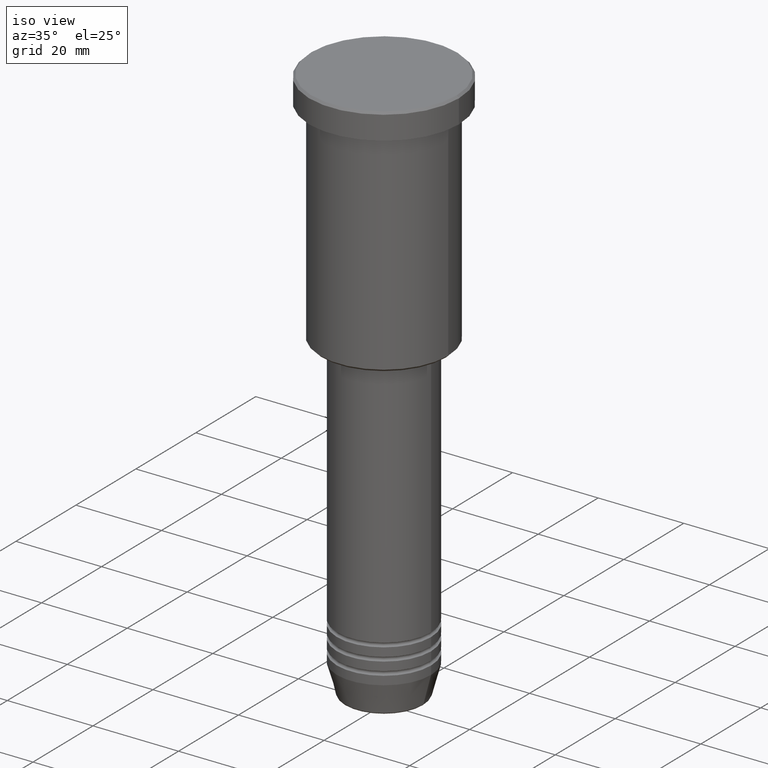
[diagram: clean part render]
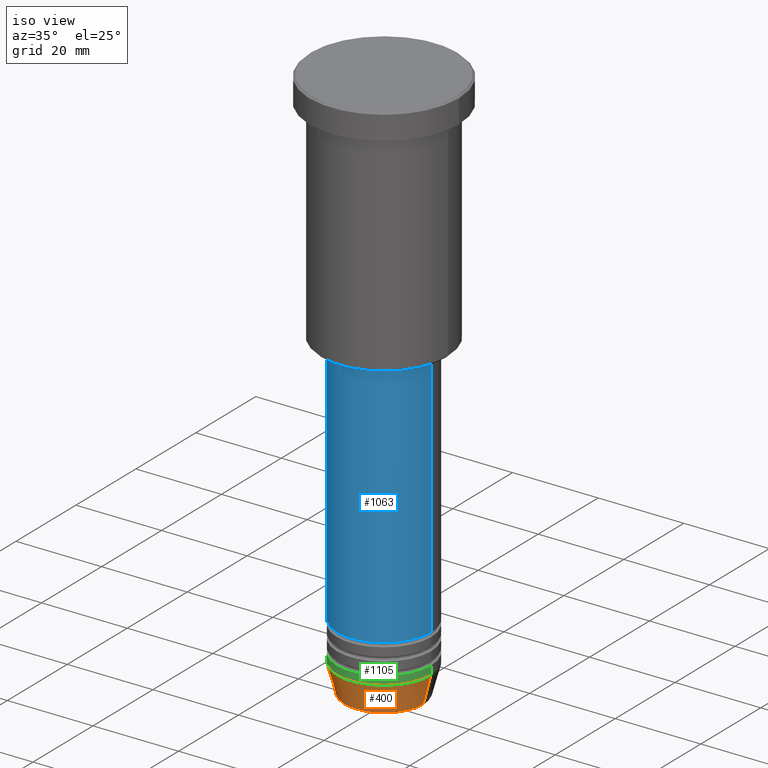
[diagram: same view with three faces highlighted in distinct colors, each labeled with its STEP entity id]
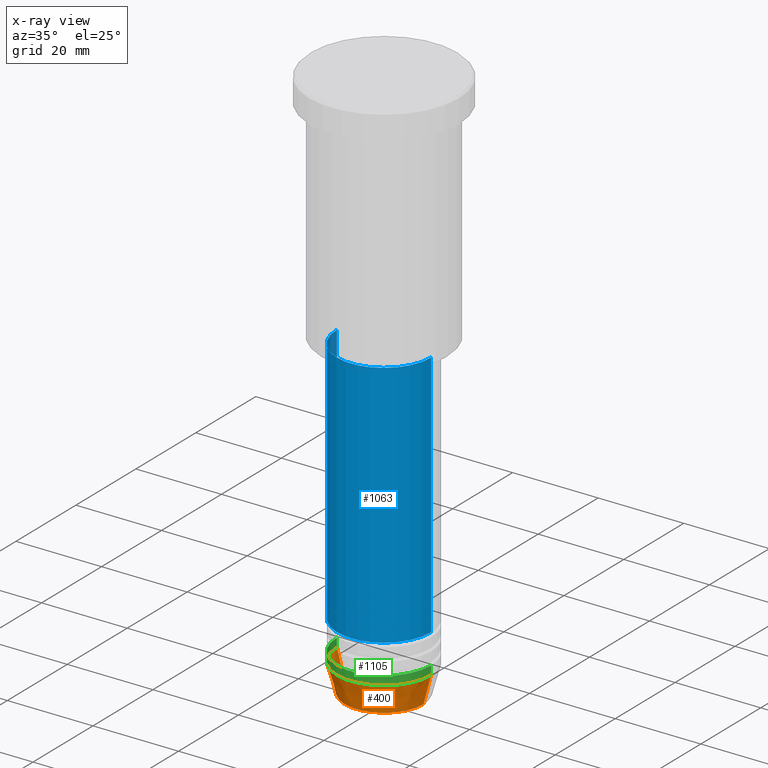
[diagram: x-ray of the same camera — body ghosted, the three highlighted faces saturated]
A machine part, iso view with three faces highlighted in distinct colors.
The next image is the same camera in x-ray (body ghosted, the three faces saturated) — at least one of them is partly hidden behind the body in this view.
Their STEP definitions:

[orange] entity #400 — the highlighted conical surface has half-angle 15 deg.
#24 = DIRECTION ( 'NONE',  ( -0.000000000000000000, -0.000000000000000000, 1.000000000000000000 ) ) ;
#54 = EDGE_LOOP ( 'NONE', ( #957, #493, #634, #1018 ) ) ;
#118 = VECTOR ( 'NONE', #348, 1000.000000000000000 ) ;
#137 = EDGE_CURVE ( 'NONE', #367, #667, #909, .T. ) ;
#174 = LINE ( 'NONE', #1151, #118 ) ;
#348 = DIRECTION ( 'NONE',  ( 0.2588190451025213501, 0.000000000000000000, 0.9659258262890680902 ) ) ;
#367 = VERTEX_POINT ( 'NONE', #1016 ) ;
#382 = CARTESIAN_POINT ( 'NONE',  ( 0.000000000000000000, 0.000000000000000000, -124.0000000000000000 ) ) ;
#398 = DIRECTION ( 'NONE',  ( 1.000000000000000000, 0.000000000000000000, 0.000000000000000000 ) ) ;
#400 = ADVANCED_FACE ( 'NONE', ( #513 ), #545, .T. ) ;
#429 = DIRECTION ( 'NONE',  ( -0.000000000000000000, -0.000000000000000000, 1.000000000000000000 ) ) ;
#449 = AXIS2_PLACEMENT_3D ( 'NONE', #864, #429, #604 ) ;
#484 = VERTEX_POINT ( 'NONE', #975 ) ;
#493 = ORIENTED_EDGE ( 'NONE', *, *, #737, .T. ) ;
#509 = EDGE_CURVE ( 'NONE', #586, #484, #174, .T. ) ;
#513 = FACE_OUTER_BOUND ( 'NONE', #54, .T. ) ;
#545 = CONICAL_SURFACE ( 'NONE', #449, 11.00000000000000000, 0.2617993877991500740 ) ;
#554 = DIRECTION ( 'NONE',  ( -0.2588190451025213501, 3.169619151431772337E-17, 0.9659258262890680902 ) ) ;
#586 = VERTEX_POINT ( 'NONE', #1092 ) ;
#587 = CARTESIAN_POINT ( 'NONE',  ( 0.000000000000000000, 0.000000000000000000, -130.6294095225512422 ) ) ;
#604 = DIRECTION ( 'NONE',  ( 1.000000000000000000, 0.000000000000000000, 0.000000000000000000 ) ) ;
#634 = ORIENTED_EDGE ( 'NONE', *, *, #509, .T. ) ;
#665 = AXIS2_PLACEMENT_3D ( 'NONE', #587, #970, #956 ) ;
#667 = VERTEX_POINT ( 'NONE', #1183 ) ;
#686 = VECTOR ( 'NONE', #554, 1000.000000000000000 ) ;
#737 = EDGE_CURVE ( 'NONE', #367, #586, #919, .T. ) ;
#864 = CARTESIAN_POINT ( 'NONE',  ( 0.000000000000000000, 0.000000000000000000, -124.0000000000000000 ) ) ;
#909 = LINE ( 'NONE', #1101, #686 ) ;
#919 = CIRCLE ( 'NONE', #665, 9.223655072137187716 ) ;
#956 = DIRECTION ( 'NONE',  ( 1.000000000000000000, 0.000000000000000000, 0.000000000000000000 ) ) ;
#957 = ORIENTED_EDGE ( 'NONE', *, *, #137, .F. ) ;
#970 = DIRECTION ( 'NONE',  ( -0.000000000000000000, -0.000000000000000000, 1.000000000000000000 ) ) ;
#975 = CARTESIAN_POINT ( 'NONE',  ( 11.00000000000000000, 0.000000000000000000, -124.0000000000000000 ) ) ;
#984 = CIRCLE ( 'NONE', #1097, 11.00000000000000000 ) ;
#1016 = CARTESIAN_POINT ( 'NONE',  ( -9.223655072137187716, 1.238341722557647004E-15, -130.6294095225512422 ) ) ;
#1018 = ORIENTED_EDGE ( 'NONE', *, *, #1049, .F. ) ;
#1049 = EDGE_CURVE ( 'NONE', #667, #484, #984, .T. ) ;
#1092 = CARTESIAN_POINT ( 'NONE',  ( 9.223655072137187716, 0.000000000000000000, -130.6294095225512422 ) ) ;
#1097 = AXIS2_PLACEMENT_3D ( 'NONE', #382, #24, #398 ) ;
#1101 = CARTESIAN_POINT ( 'NONE',  ( -11.00000000000000000, 1.347111479062088405E-15, -124.0000000000000000 ) ) ;
#1151 = CARTESIAN_POINT ( 'NONE',  ( 11.00000000000000000, 0.000000000000000000, -124.0000000000000000 ) ) ;
#1183 = CARTESIAN_POINT ( 'NONE',  ( -11.00000000000000000, 1.347111479062088405E-15, -124.0000000000000000 ) ) ;

[blue] entity #1063 — the highlighted cylindrical surface (partial cylindrical patch) has radius 11 mm, axis along (-0, -0, 1).
#71 = LINE ( 'NONE', #342, #854 ) ;
#95 = EDGE_CURVE ( 'NONE', #1126, #694, #804, .T. ) ;
#187 = ORIENTED_EDGE ( 'NONE', *, *, #95, .T. ) ;
#195 = CIRCLE ( 'NONE', #1160, 11.00000000000000000 ) ;
#222 = VERTEX_POINT ( 'NONE', #463 ) ;
#267 = DIRECTION ( 'NONE',  ( -0.000000000000000000, -0.000000000000000000, 1.000000000000000000 ) ) ;
#296 = VECTOR ( 'NONE', #671, 1000.000000000000000 ) ;
#334 = AXIS2_PLACEMENT_3D ( 'NONE', #619, #969, #819 ) ;
#342 = CARTESIAN_POINT ( 'NONE',  ( 11.00000000000000000, 0.000000000000000000, 0.000000000000000000 ) ) ;
#387 = CARTESIAN_POINT ( 'NONE',  ( -11.00000000000000000, 1.347111479062088405E-15, -114.9999999999999574 ) ) ;
#395 = CARTESIAN_POINT ( 'NONE',  ( 11.00000000000000000, 0.000000000000000000, -114.9999999999999574 ) ) ;
#439 = DIRECTION ( 'NONE',  ( -0.000000000000000000, -0.000000000000000000, 1.000000000000000000 ) ) ;
#463 = CARTESIAN_POINT ( 'NONE',  ( 11.00000000000000000, 0.000000000000000000, -57.00000000000000000 ) ) ;
#472 = EDGE_CURVE ( 'NONE', #1081, #222, #195, .T. ) ;
#475 = FACE_OUTER_BOUND ( 'NONE', #514, .T. ) ;
#506 = ORIENTED_EDGE ( 'NONE', *, *, #472, .F. ) ;
#511 = ORIENTED_EDGE ( 'NONE', *, *, #1074, .F. ) ;
#514 = EDGE_LOOP ( 'NONE', ( #511, #187, #1116, #506 ) ) ;
#619 = CARTESIAN_POINT ( 'NONE',  ( 0.000000000000000000, 0.000000000000000000, -114.9999999999999574 ) ) ;
#661 = CYLINDRICAL_SURFACE ( 'NONE', #1175, 11.00000000000000000 ) ;
#671 = DIRECTION ( 'NONE',  ( -0.000000000000000000, -0.000000000000000000, 1.000000000000000000 ) ) ;
#694 = VERTEX_POINT ( 'NONE', #395 ) ;
#712 = CARTESIAN_POINT ( 'NONE',  ( 0.000000000000000000, 0.000000000000000000, -57.00000000000000000 ) ) ;
#762 = LINE ( 'NONE', #828, #296 ) ;
#801 = DIRECTION ( 'NONE',  ( 1.000000000000000000, 0.000000000000000000, 0.000000000000000000 ) ) ;
#804 = CIRCLE ( 'NONE', #334, 11.00000000000000000 ) ;
#819 = DIRECTION ( 'NONE',  ( 1.000000000000000000, 0.000000000000000000, 0.000000000000000000 ) ) ;
#828 = CARTESIAN_POINT ( 'NONE',  ( -11.00000000000000000, 1.347111479062088405E-15, 0.000000000000000000 ) ) ;
#854 = VECTOR ( 'NONE', #439, 1000.000000000000000 ) ;
#859 = EDGE_CURVE ( 'NONE', #694, #222, #71, .T. ) ;
#907 = DIRECTION ( 'NONE',  ( -0.000000000000000000, -0.000000000000000000, 1.000000000000000000 ) ) ;
#920 = CARTESIAN_POINT ( 'NONE',  ( 0.000000000000000000, 0.000000000000000000, 0.000000000000000000 ) ) ;
#927 = DIRECTION ( 'NONE',  ( 1.000000000000000000, 0.000000000000000000, 0.000000000000000000 ) ) ;
#969 = DIRECTION ( 'NONE',  ( -0.000000000000000000, -0.000000000000000000, 1.000000000000000000 ) ) ;
#1063 = ADVANCED_FACE ( 'NONE', ( #475 ), #661, .T. ) ;
#1074 = EDGE_CURVE ( 'NONE', #1126, #1081, #762, .T. ) ;
#1081 = VERTEX_POINT ( 'NONE', #1110 ) ;
#1110 = CARTESIAN_POINT ( 'NONE',  ( -11.00000000000000000, 1.347111479062088405E-15, -57.00000000000000000 ) ) ;
#1116 = ORIENTED_EDGE ( 'NONE', *, *, #859, .T. ) ;
#1126 = VERTEX_POINT ( 'NONE', #387 ) ;
#1160 = AXIS2_PLACEMENT_3D ( 'NONE', #712, #267, #801 ) ;
#1175 = AXIS2_PLACEMENT_3D ( 'NONE', #920, #907, #927 ) ;

[green] entity #1105 — the highlighted cylindrical surface (partial cylindrical patch) has radius 11 mm, axis along (-0, -0, 1).
#3 = FACE_OUTER_BOUND ( 'NONE', #237, .T. ) ;
#24 = DIRECTION ( 'NONE',  ( -0.000000000000000000, -0.000000000000000000, 1.000000000000000000 ) ) ;
#42 = ORIENTED_EDGE ( 'NONE', *, *, #1049, .T. ) ;
#59 = VECTOR ( 'NONE', #917, 1000.000000000000000 ) ;
#73 = CARTESIAN_POINT ( 'NONE',  ( 11.00000000000000000, 0.000000000000000000, -122.0000000000000000 ) ) ;
#83 = AXIS2_PLACEMENT_3D ( 'NONE', #512, #794, #862 ) ;
#84 = AXIS2_PLACEMENT_3D ( 'NONE', #1001, #1090, #192 ) ;
#96 = LINE ( 'NONE', #544, #59 ) ;
#192 = DIRECTION ( 'NONE',  ( 1.000000000000000000, 0.000000000000000000, 0.000000000000000000 ) ) ;
#220 = EDGE_CURVE ( 'NONE', #667, #231, #96, .T. ) ;
#229 = CARTESIAN_POINT ( 'NONE',  ( 11.00000000000000000, 0.000000000000000000, 0.000000000000000000 ) ) ;
#231 = VERTEX_POINT ( 'NONE', #829 ) ;
#237 = EDGE_LOOP ( 'NONE', ( #1109, #42, #916, #769 ) ) ;
#297 = EDGE_CURVE ( 'NONE', #484, #490, #848, .T. ) ;
#382 = CARTESIAN_POINT ( 'NONE',  ( 0.000000000000000000, 0.000000000000000000, -124.0000000000000000 ) ) ;
#398 = DIRECTION ( 'NONE',  ( 1.000000000000000000, 0.000000000000000000, 0.000000000000000000 ) ) ;
#407 = DIRECTION ( 'NONE',  ( -0.000000000000000000, -0.000000000000000000, 1.000000000000000000 ) ) ;
#484 = VERTEX_POINT ( 'NONE', #975 ) ;
#490 = VERTEX_POINT ( 'NONE', #73 ) ;
#512 = CARTESIAN_POINT ( 'NONE',  ( 0.000000000000000000, 0.000000000000000000, -122.0000000000000000 ) ) ;
#544 = CARTESIAN_POINT ( 'NONE',  ( -11.00000000000000000, 1.347111479062088405E-15, 0.000000000000000000 ) ) ;
#667 = VERTEX_POINT ( 'NONE', #1183 ) ;
#769 = ORIENTED_EDGE ( 'NONE', *, *, #826, .F. ) ;
#794 = DIRECTION ( 'NONE',  ( -0.000000000000000000, -0.000000000000000000, 1.000000000000000000 ) ) ;
#826 = EDGE_CURVE ( 'NONE', #231, #490, #995, .T. ) ;
#829 = CARTESIAN_POINT ( 'NONE',  ( -11.00000000000000000, 1.347111479062088405E-15, -122.0000000000000000 ) ) ;
#848 = LINE ( 'NONE', #229, #941 ) ;
#862 = DIRECTION ( 'NONE',  ( 1.000000000000000000, 0.000000000000000000, 0.000000000000000000 ) ) ;
#916 = ORIENTED_EDGE ( 'NONE', *, *, #297, .T. ) ;
#917 = DIRECTION ( 'NONE',  ( -0.000000000000000000, -0.000000000000000000, 1.000000000000000000 ) ) ;
#941 = VECTOR ( 'NONE', #407, 1000.000000000000000 ) ;
#975 = CARTESIAN_POINT ( 'NONE',  ( 11.00000000000000000, 0.000000000000000000, -124.0000000000000000 ) ) ;
#984 = CIRCLE ( 'NONE', #1097, 11.00000000000000000 ) ;
#995 = CIRCLE ( 'NONE', #83, 11.00000000000000000 ) ;
#1001 = CARTESIAN_POINT ( 'NONE',  ( 0.000000000000000000, 0.000000000000000000, 0.000000000000000000 ) ) ;
#1049 = EDGE_CURVE ( 'NONE', #667, #484, #984, .T. ) ;
#1090 = DIRECTION ( 'NONE',  ( -0.000000000000000000, -0.000000000000000000, 1.000000000000000000 ) ) ;
#1097 = AXIS2_PLACEMENT_3D ( 'NONE', #382, #24, #398 ) ;
#1102 = CYLINDRICAL_SURFACE ( 'NONE', #84, 11.00000000000000000 ) ;
#1105 = ADVANCED_FACE ( 'NONE', ( #3 ), #1102, .T. ) ;
#1109 = ORIENTED_EDGE ( 'NONE', *, *, #220, .F. ) ;
#1183 = CARTESIAN_POINT ( 'NONE',  ( -11.00000000000000000, 1.347111479062088405E-15, -124.0000000000000000 ) ) ;